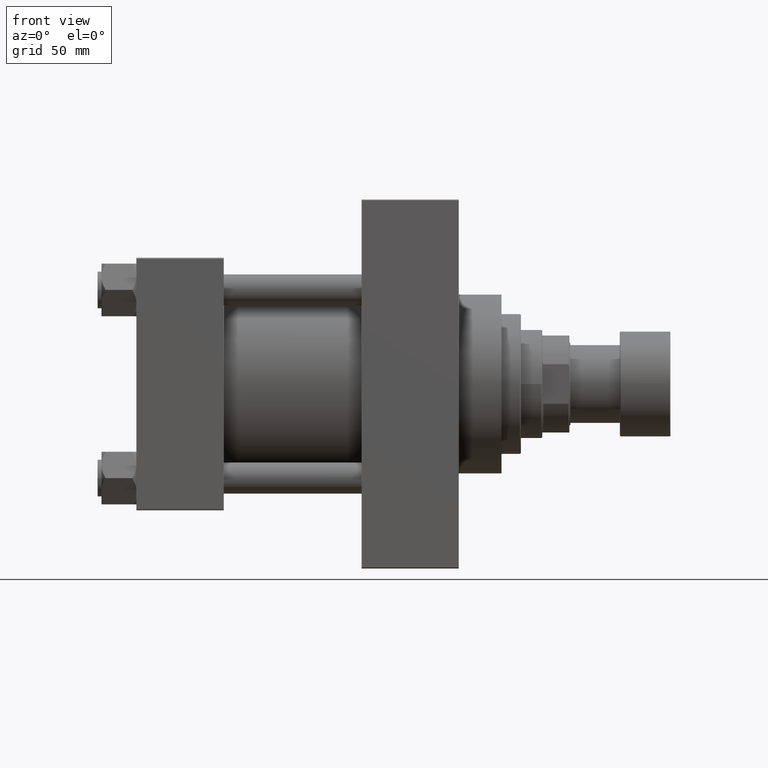
[diagram: clean part render]
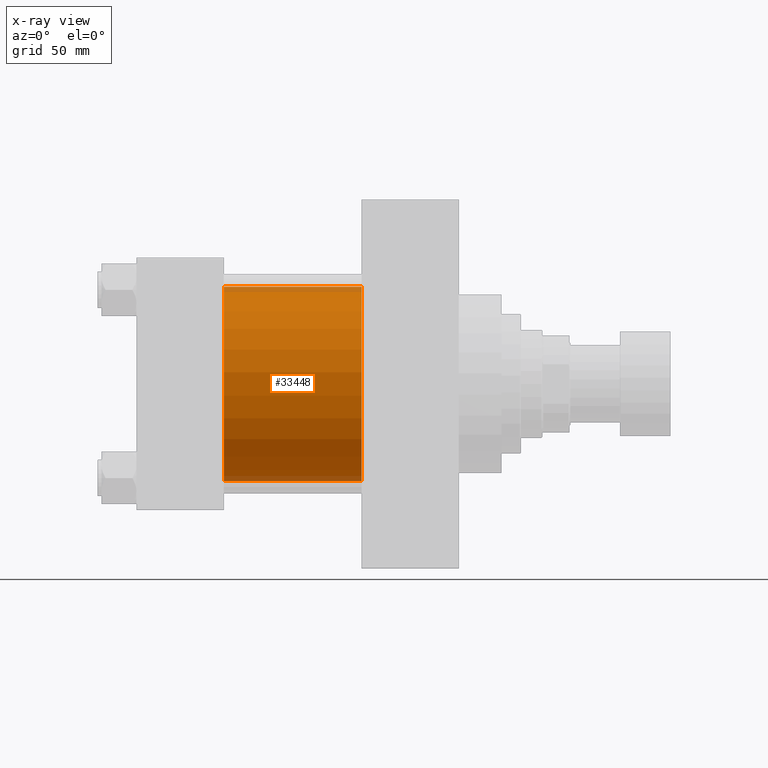
[diagram: x-ray — body ghosted, one internal face saturated and labeled with its STEP entity id]
A machine part, front view, then the same camera in x-ray: the body is ghosted and one INTERNAL B-rep face — a face not visible from any outside direction — is saturated and labeled: STEP entity #33448.
In plain terms, the highlighted cylindrical surface (partial cylindrical patch) has radius 50 mm, axis along (-1, -0, -0).
Its self-contained STEP definition (entity closure, byte-faithful):
#5336 = ORIENTED_EDGE ( 'NONE', *, *, #44484, .F. ) ;
#7600 = ORIENTED_EDGE ( 'NONE', *, *, #15355, .T. ) ;
#8364 = LINE ( 'NONE', #9135, #13248 ) ;
#9135 = CARTESIAN_POINT ( 'NONE',  ( 115.9999999999999858, -2.602085213965210642E-15, 50.00000000000000000 ) ) ;
#10964 = CARTESIAN_POINT ( 'NONE',  ( 115.9999999999999858, -2.602085213965210642E-15, 0.000000000000000000 ) ) ;
#11319 = AXIS2_PLACEMENT_3D ( 'NONE', #48093, #40952, #12988 ) ;
#11905 = DIRECTION ( 'NONE',  ( 0.000000000000000000, 0.000000000000000000, -1.000000000000000000 ) ) ;
#12495 = LINE ( 'NONE', #21131, #45795 ) ;
#12988 = DIRECTION ( 'NONE',  ( 0.000000000000000000, 0.000000000000000000, -1.000000000000000000 ) ) ;
#13248 = VECTOR ( 'NONE', #43984, 1000.000000000000000 ) ;
#13477 = ORIENTED_EDGE ( 'NONE', *, *, #19148, .T. ) ;
#14548 = EDGE_CURVE ( 'NONE', #29237, #49581, #41340, .T. ) ;
#14964 = CARTESIAN_POINT ( 'NONE',  ( 45.00000000000000000, -2.602085213965210642E-15, 0.000000000000000000 ) ) ;
#15355 = EDGE_CURVE ( 'NONE', #16456, #19327, #47069, .T. ) ;
#15509 = CARTESIAN_POINT ( 'NONE',  ( 45.00000000000000000, 3.521148781771555838E-15, -50.00000000000000000 ) ) ;
#16456 = VERTEX_POINT ( 'NONE', #32005 ) ;
#18577 = DIRECTION ( 'NONE',  ( 0.000000000000000000, 0.000000000000000000, 1.000000000000000000 ) ) ;
#19148 = EDGE_CURVE ( 'NONE', #19327, #49581, #12495, .T. ) ;
#19310 = CARTESIAN_POINT ( 'NONE',  ( 115.9999999999999858, 3.521148781771555838E-15, -50.00000000000000000 ) ) ;
#19327 = VERTEX_POINT ( 'NONE', #19310 ) ;
#20371 = DIRECTION ( 'NONE',  ( -1.000000000000000000, -0.000000000000000000, -0.000000000000000000 ) ) ;
#21131 = CARTESIAN_POINT ( 'NONE',  ( 115.9999999999999858, 3.521148781771555838E-15, -50.00000000000000000 ) ) ;
#23178 = CYLINDRICAL_SURFACE ( 'NONE', #28343, 50.00000000000000000 ) ;
#26550 = CARTESIAN_POINT ( 'NONE',  ( 45.00000000000000000, -2.602085213965210642E-15, 50.00000000000000000 ) ) ;
#28343 = AXIS2_PLACEMENT_3D ( 'NONE', #10964, #38459, #18577 ) ;
#29237 = VERTEX_POINT ( 'NONE', #26550 ) ;
#31333 = EDGE_LOOP ( 'NONE', ( #7600, #13477, #33778, #5336 ) ) ;
#32005 = CARTESIAN_POINT ( 'NONE',  ( 115.9999999999999858, -2.602085213965210642E-15, 50.00000000000000000 ) ) ;
#33448 = ADVANCED_FACE ( 'NONE', ( #46329 ), #23178, .F. ) ;
#33778 = ORIENTED_EDGE ( 'NONE', *, *, #14548, .F. ) ;
#38459 = DIRECTION ( 'NONE',  ( -1.000000000000000000, -0.000000000000000000, -0.000000000000000000 ) ) ;
#40545 = AXIS2_PLACEMENT_3D ( 'NONE', #14964, #46767, #11905 ) ;
#40952 = DIRECTION ( 'NONE',  ( 1.000000000000000000, 0.000000000000000000, 0.000000000000000000 ) ) ;
#41340 = CIRCLE ( 'NONE', #40545, 50.00000000000000000 ) ;
#43984 = DIRECTION ( 'NONE',  ( -1.000000000000000000, -0.000000000000000000, -0.000000000000000000 ) ) ;
#44484 = EDGE_CURVE ( 'NONE', #16456, #29237, #8364, .T. ) ;
#45795 = VECTOR ( 'NONE', #20371, 1000.000000000000000 ) ;
#46329 = FACE_OUTER_BOUND ( 'NONE', #31333, .T. ) ;
#46767 = DIRECTION ( 'NONE',  ( 1.000000000000000000, 0.000000000000000000, 0.000000000000000000 ) ) ;
#47069 = CIRCLE ( 'NONE', #11319, 50.00000000000000000 ) ;
#48093 = CARTESIAN_POINT ( 'NONE',  ( 115.9999999999999858, -2.602085213965210642E-15, 0.000000000000000000 ) ) ;
#49581 = VERTEX_POINT ( 'NONE', #15509 ) ;